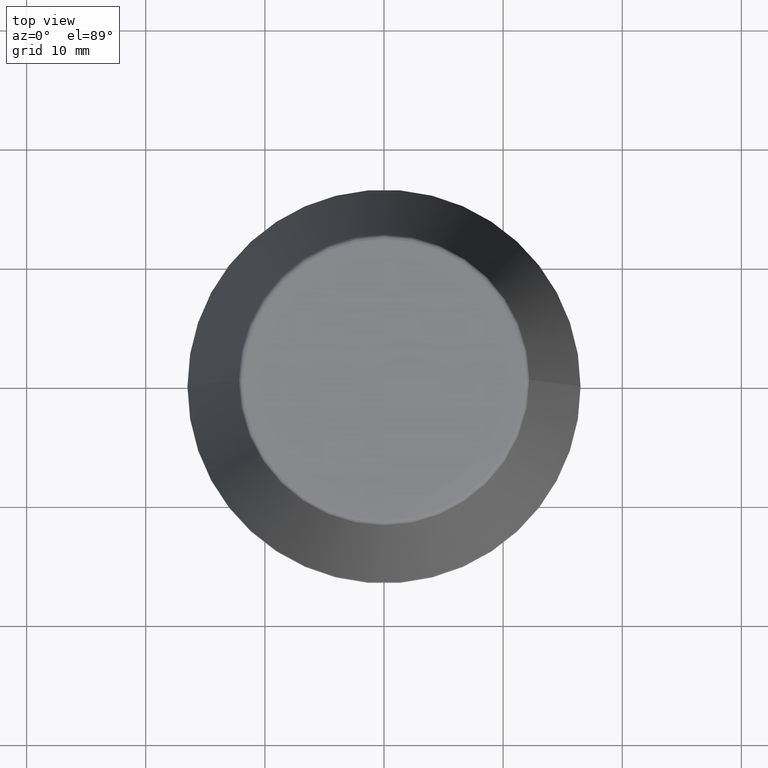
[diagram: clean part render]
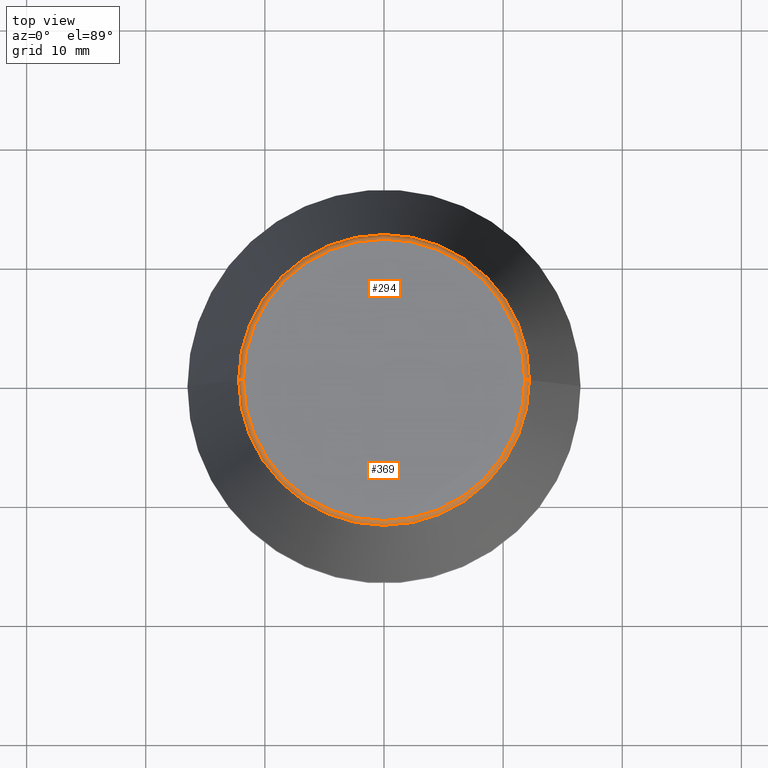
[diagram: same view with one multi-face feature highlighted, each face labeled with its STEP entity id]
A machine part, top view. The highlighted faces form ONE feature: a constant-radius fillet chain: 2 tangent blend faces with common blend radius 0.4 mm. The faces share edges in the B-rep.
Their STEP definitions:
[1] entity #369 (Torus):
#5 = CIRCLE ( 'NONE', #234, 0.4000000000000028000 ) ;
#15 = CARTESIAN_POINT ( 'NONE',  ( 12.20600611160694300, 1.757755848304969800E-015, 39.65566924038402900 ) ) ;
#29 = EDGE_CURVE ( 'NONE', #164, #100, #305, .T. ) ;
#55 = DIRECTION ( 'NONE',  ( 1.000000000000000000, 0.0000000000000000000, 0.0000000000000000000 ) ) ;
#77 = TOROIDAL_SURFACE ( 'NONE', #123, 11.80989888411031400, 0.4000000000000026900 ) ;
#100 = VERTEX_POINT ( 'NONE', #15 ) ;
#121 = DIRECTION ( 'NONE',  ( 0.0000000000000000000, 0.0000000000000000000, -1.000000000000000000 ) ) ;
#122 = CARTESIAN_POINT ( 'NONE',  ( -11.80989888411031400, 1.446295486667959300E-015, 39.60000000000000100 ) ) ;
#123 = AXIS2_PLACEMENT_3D ( 'NONE', #385, #209, #260 ) ;
#129 = CARTESIAN_POINT ( 'NONE',  ( -11.80989888411031400, 1.470550059081603400E-015, 40.00000000000000700 ) ) ;
#140 = CIRCLE ( 'NONE', #243, 11.80989888411031400 ) ;
#145 = DIRECTION ( 'NONE',  ( 0.0000000000000000000, -1.000000000000000000, 0.0000000000000000000 ) ) ;
#148 = DIRECTION ( 'NONE',  ( -1.000000000000000000, 1.224646799147352500E-016, 0.0000000000000000000 ) ) ;
#151 = DIRECTION ( 'NONE',  ( 1.000000000000000000, 0.0000000000000000000, 0.0000000000000000000 ) ) ;
#164 = VERTEX_POINT ( 'NONE', #226 ) ;
#185 = AXIS2_PLACEMENT_3D ( 'NONE', #328, #266, #55 ) ;
#186 = ORIENTED_EDGE ( 'NONE', *, *, #248, .F. ) ;
#199 = VERTEX_POINT ( 'NONE', #129 ) ;
#209 = DIRECTION ( 'NONE',  ( -0.0000000000000000000, -0.0000000000000000000, 1.000000000000000000 ) ) ;
#226 = CARTESIAN_POINT ( 'NONE',  ( -12.20600611160694300, 0.0000000000000000000, 39.65566924038402900 ) ) ;
#232 = ORIENTED_EDGE ( 'NONE', *, *, #29, .T. ) ;
#234 = AXIS2_PLACEMENT_3D ( 'NONE', #122, #339, #148 ) ;
#243 = AXIS2_PLACEMENT_3D ( 'NONE', #317, #289, #151 ) ;
#248 = EDGE_CURVE ( 'NONE', #164, #199, #5, .T. ) ;
#254 = ORIENTED_EDGE ( 'NONE', *, *, #273, .F. ) ;
#260 = DIRECTION ( 'NONE',  ( 1.000000000000000000, 0.0000000000000000000, 0.0000000000000000000 ) ) ;
#266 = DIRECTION ( 'NONE',  ( -0.0000000000000000000, -0.0000000000000000000, 1.000000000000000000 ) ) ;
#268 = CARTESIAN_POINT ( 'NONE',  ( 11.80989888411031400, 0.0000000000000000000, 40.00000000000000700 ) ) ;
#273 = EDGE_CURVE ( 'NONE', #199, #354, #140, .T. ) ;
#274 = ORIENTED_EDGE ( 'NONE', *, *, #379, .T. ) ;
#289 = DIRECTION ( 'NONE',  ( -0.0000000000000000000, -0.0000000000000000000, 1.000000000000000000 ) ) ;
#296 = CARTESIAN_POINT ( 'NONE',  ( 11.80989888411031400, 0.0000000000000000000, 39.60000000000000100 ) ) ;
#305 = CIRCLE ( 'NONE', #185, 12.20600611160694300 ) ;
#310 = AXIS2_PLACEMENT_3D ( 'NONE', #296, #145, #121 ) ;
#316 = EDGE_LOOP ( 'NONE', ( #186, #232, #274, #254 ) ) ;
#317 = CARTESIAN_POINT ( 'NONE',  ( 0.0000000000000000000, 0.0000000000000000000, 40.00000000000000700 ) ) ;
#328 = CARTESIAN_POINT ( 'NONE',  ( 0.0000000000000000000, 0.0000000000000000000, 39.65566924038402900 ) ) ;
#339 = DIRECTION ( 'NONE',  ( 1.224646799147353200E-016, 1.000000000000000000, 0.0000000000000000000 ) ) ;
#349 = FACE_OUTER_BOUND ( 'NONE', #316, .T. ) ;
#354 = VERTEX_POINT ( 'NONE', #268 ) ;
#369 = ADVANCED_FACE ( 'NONE', ( #349 ), #77, .T. ) ;
#379 = EDGE_CURVE ( 'NONE', #100, #354, #380, .T. ) ;
#380 = CIRCLE ( 'NONE', #310, 0.4000000000000045200 ) ;
#385 = CARTESIAN_POINT ( 'NONE',  ( 0.0000000000000000000, 0.0000000000000000000, 39.60000000000000100 ) ) ;
[2] entity #294 (Torus):
#5 = CIRCLE ( 'NONE', #234, 0.4000000000000028000 ) ;
#15 = CARTESIAN_POINT ( 'NONE',  ( 12.20600611160694300, 1.757755848304969800E-015, 39.65566924038402900 ) ) ;
#40 = EDGE_LOOP ( 'NONE', ( #240, #134, #88, #168 ) ) ;
#48 = DIRECTION ( 'NONE',  ( 1.000000000000000000, 0.0000000000000000000, 0.0000000000000000000 ) ) ;
#62 = EDGE_CURVE ( 'NONE', #100, #164, #341, .T. ) ;
#72 = AXIS2_PLACEMENT_3D ( 'NONE', #181, #307, #48 ) ;
#88 = ORIENTED_EDGE ( 'NONE', *, *, #287, .F. ) ;
#100 = VERTEX_POINT ( 'NONE', #15 ) ;
#117 = TOROIDAL_SURFACE ( 'NONE', #72, 11.80989888411031400, 0.4000000000000026900 ) ;
#121 = DIRECTION ( 'NONE',  ( 0.0000000000000000000, 0.0000000000000000000, -1.000000000000000000 ) ) ;
#122 = CARTESIAN_POINT ( 'NONE',  ( -11.80989888411031400, 1.446295486667959300E-015, 39.60000000000000100 ) ) ;
#129 = CARTESIAN_POINT ( 'NONE',  ( -11.80989888411031400, 1.470550059081603400E-015, 40.00000000000000700 ) ) ;
#134 = ORIENTED_EDGE ( 'NONE', *, *, #248, .T. ) ;
#145 = DIRECTION ( 'NONE',  ( 0.0000000000000000000, -1.000000000000000000, 0.0000000000000000000 ) ) ;
#148 = DIRECTION ( 'NONE',  ( -1.000000000000000000, 1.224646799147352500E-016, 0.0000000000000000000 ) ) ;
#159 = DIRECTION ( 'NONE',  ( -0.0000000000000000000, -0.0000000000000000000, 1.000000000000000000 ) ) ;
#164 = VERTEX_POINT ( 'NONE', #226 ) ;
#168 = ORIENTED_EDGE ( 'NONE', *, *, #379, .F. ) ;
#181 = CARTESIAN_POINT ( 'NONE',  ( 0.0000000000000000000, 0.0000000000000000000, 39.60000000000000100 ) ) ;
#199 = VERTEX_POINT ( 'NONE', #129 ) ;
#214 = DIRECTION ( 'NONE',  ( -0.0000000000000000000, -0.0000000000000000000, 1.000000000000000000 ) ) ;
#215 = AXIS2_PLACEMENT_3D ( 'NONE', #324, #159, #365 ) ;
#222 = CIRCLE ( 'NONE', #358, 11.80989888411031400 ) ;
#226 = CARTESIAN_POINT ( 'NONE',  ( -12.20600611160694300, 0.0000000000000000000, 39.65566924038402900 ) ) ;
#228 = DIRECTION ( 'NONE',  ( 1.000000000000000000, 0.0000000000000000000, 0.0000000000000000000 ) ) ;
#234 = AXIS2_PLACEMENT_3D ( 'NONE', #122, #339, #148 ) ;
#240 = ORIENTED_EDGE ( 'NONE', *, *, #62, .T. ) ;
#248 = EDGE_CURVE ( 'NONE', #164, #199, #5, .T. ) ;
#268 = CARTESIAN_POINT ( 'NONE',  ( 11.80989888411031400, 0.0000000000000000000, 40.00000000000000700 ) ) ;
#282 = FACE_OUTER_BOUND ( 'NONE', #40, .T. ) ;
#287 = EDGE_CURVE ( 'NONE', #354, #199, #222, .T. ) ;
#294 = ADVANCED_FACE ( 'NONE', ( #282 ), #117, .T. ) ;
#296 = CARTESIAN_POINT ( 'NONE',  ( 11.80989888411031400, 0.0000000000000000000, 39.60000000000000100 ) ) ;
#307 = DIRECTION ( 'NONE',  ( -0.0000000000000000000, -0.0000000000000000000, 1.000000000000000000 ) ) ;
#310 = AXIS2_PLACEMENT_3D ( 'NONE', #296, #145, #121 ) ;
#324 = CARTESIAN_POINT ( 'NONE',  ( 0.0000000000000000000, 0.0000000000000000000, 39.65566924038402900 ) ) ;
#339 = DIRECTION ( 'NONE',  ( 1.224646799147353200E-016, 1.000000000000000000, 0.0000000000000000000 ) ) ;
#341 = CIRCLE ( 'NONE', #215, 12.20600611160694300 ) ;
#354 = VERTEX_POINT ( 'NONE', #268 ) ;
#356 = CARTESIAN_POINT ( 'NONE',  ( 0.0000000000000000000, 0.0000000000000000000, 40.00000000000000700 ) ) ;
#358 = AXIS2_PLACEMENT_3D ( 'NONE', #356, #214, #228 ) ;
#365 = DIRECTION ( 'NONE',  ( 1.000000000000000000, 0.0000000000000000000, 0.0000000000000000000 ) ) ;
#379 = EDGE_CURVE ( 'NONE', #100, #354, #380, .T. ) ;
#380 = CIRCLE ( 'NONE', #310, 0.4000000000000045200 ) ;